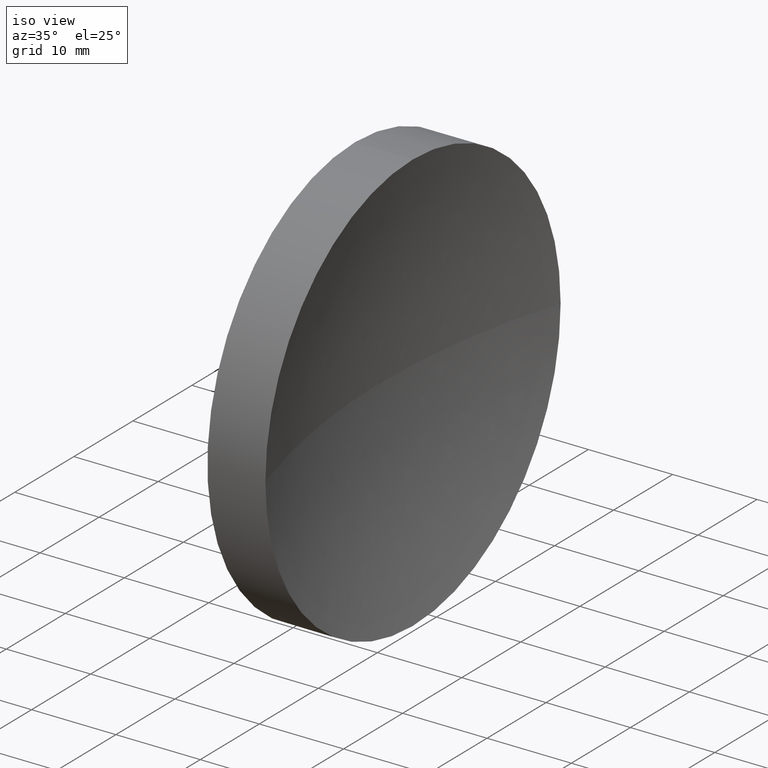
[diagram: clean part render]
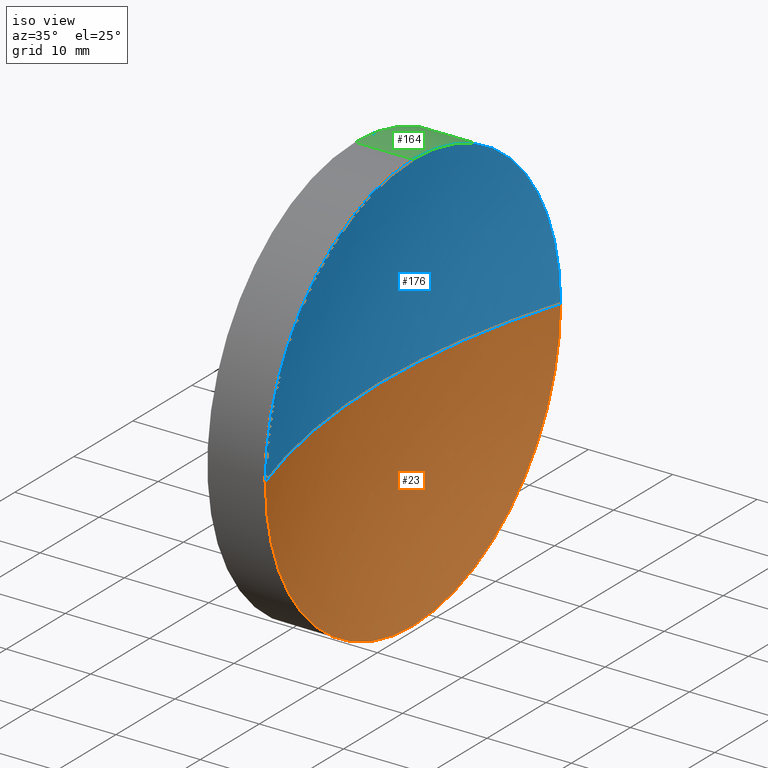
[diagram: same view with three faces highlighted in distinct colors, each labeled with its STEP entity id]
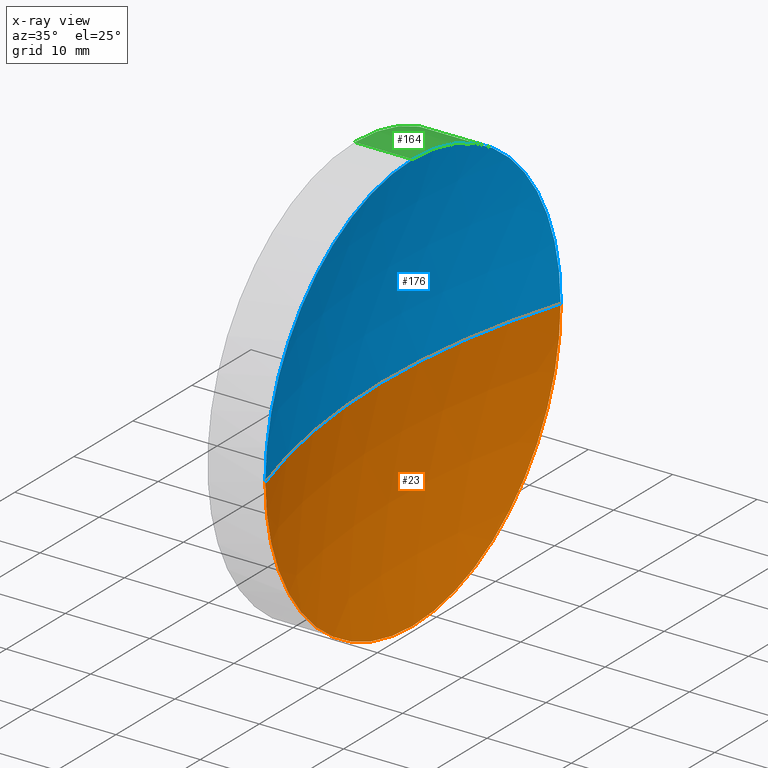
[diagram: x-ray of the same camera — body ghosted, the three highlighted faces saturated]
A machine part, iso view with three faces highlighted in distinct colors.
The next image is the same camera in x-ray (body ghosted, the three faces saturated) — at least one of them is partly hidden behind the body in this view.
Their STEP definitions:

[orange] entity #23 — the highlighted spherical surface has radius 82.62 mm.
#4 = EDGE_CURVE ( 'NONE', #29, #13, #57, .T. ) ;
#6 = DIRECTION ( 'NONE',  ( 0.0000000000000000000, 1.000000000000000000, 1.224646799147353000E-016 ) ) ;
#7 = DIRECTION ( 'NONE',  ( -1.000000000000000000, -0.0000000000000000000, -0.0000000000000000000 ) ) ;
#13 = VERTEX_POINT ( 'NONE', #123 ) ;
#18 = CARTESIAN_POINT ( 'NONE',  ( 120.6125997378311500, 40.15563045701520700, -3.061616997868379500E-015 ) ) ;
#19 = CARTESIAN_POINT ( 'NONE',  ( 199.3594371346434900, 65.15563045701517800, 0.0000000000000000000 ) ) ;
#22 = CARTESIAN_POINT ( 'NONE',  ( 120.6125997378311500, 90.15563045701516400, 0.0000000000000000000 ) ) ;
#23 = ADVANCED_FACE ( 'NONE', ( #129 ), #59, .F. ) ;
#28 = EDGE_CURVE ( 'NONE', #175, #13, #101, .T. ) ;
#29 = VERTEX_POINT ( 'NONE', #18 ) ;
#32 = AXIS2_PLACEMENT_3D ( 'NONE', #125, #33, #6 ) ;
#33 = DIRECTION ( 'NONE',  ( 0.0000000000000000000, 1.224646799147353200E-016, -1.000000000000000000 ) ) ;
#40 = CARTESIAN_POINT ( 'NONE',  ( 120.6125997378311600, 65.15563045701519200, 0.0000000000000000000 ) ) ;
#42 = ORIENTED_EDGE ( 'NONE', *, *, #172, .F. ) ;
#46 = DIRECTION ( 'NONE',  ( 0.0000000000000000000, 0.0000000000000000000, 1.000000000000000000 ) ) ;
#54 = AXIS2_PLACEMENT_3D ( 'NONE', #19, #46, #108 ) ;
#57 = CIRCLE ( 'NONE', #32, 82.62000000000001900 ) ;
#59 = SPHERICAL_SURFACE ( 'NONE', #92, 82.62000000000000500 ) ;
#60 = EDGE_CURVE ( 'NONE', #175, #88, #95, .T. ) ;
#63 = AXIS2_PLACEMENT_3D ( 'NONE', #40, #182, #87 ) ;
#80 = CARTESIAN_POINT ( 'NONE',  ( 120.6125997378311600, 65.15563045701519200, -24.99999999999998200 ) ) ;
#83 = ORIENTED_EDGE ( 'NONE', *, *, #28, .T. ) ;
#85 = CARTESIAN_POINT ( 'NONE',  ( 120.6125997378311600, 65.15563045701519200, 0.0000000000000000000 ) ) ;
#87 = DIRECTION ( 'NONE',  ( 0.0000000000000000000, 0.0000000000000000000, 1.000000000000000000 ) ) ;
#88 = VERTEX_POINT ( 'NONE', #80 ) ;
#92 = AXIS2_PLACEMENT_3D ( 'NONE', #153, #179, #139 ) ;
#95 = CIRCLE ( 'NONE', #63, 24.99999999999998200 ) ;
#101 = CIRCLE ( 'NONE', #54, 82.61999999999997600 ) ;
#108 = DIRECTION ( 'NONE',  ( 1.000000000000000000, 0.0000000000000000000, 0.0000000000000000000 ) ) ;
#116 = ORIENTED_EDGE ( 'NONE', *, *, #60, .F. ) ;
#118 = AXIS2_PLACEMENT_3D ( 'NONE', #85, #7, #180 ) ;
#122 = ORIENTED_EDGE ( 'NONE', *, *, #4, .F. ) ;
#123 = CARTESIAN_POINT ( 'NONE',  ( 116.7394371346435000, 65.15563045701517800, 0.0000000000000000000 ) ) ;
#125 = CARTESIAN_POINT ( 'NONE',  ( 199.3594371346434900, 65.15563045701517800, 0.0000000000000000000 ) ) ;
#129 = FACE_OUTER_BOUND ( 'NONE', #167, .T. ) ;
#139 = DIRECTION ( 'NONE',  ( 0.0000000000000000000, 1.000000000000000000, 0.0000000000000000000 ) ) ;
#149 = CIRCLE ( 'NONE', #118, 24.99999999999998200 ) ;
#153 = CARTESIAN_POINT ( 'NONE',  ( 199.3594371346434900, 65.15563045701517800, 0.0000000000000000000 ) ) ;
#167 = EDGE_LOOP ( 'NONE', ( #122, #42, #116, #83 ) ) ;
#172 = EDGE_CURVE ( 'NONE', #88, #29, #149, .T. ) ;
#175 = VERTEX_POINT ( 'NONE', #22 ) ;
#179 = DIRECTION ( 'NONE',  ( 0.0000000000000000000, 0.0000000000000000000, -1.000000000000000000 ) ) ;
#180 = DIRECTION ( 'NONE',  ( 0.0000000000000000000, 0.0000000000000000000, 1.000000000000000000 ) ) ;
#182 = DIRECTION ( 'NONE',  ( -1.000000000000000000, -0.0000000000000000000, -0.0000000000000000000 ) ) ;

[blue] entity #176 — the highlighted spherical surface has radius 82.62 mm.
#4 = EDGE_CURVE ( 'NONE', #29, #13, #57, .T. ) ;
#5 = DIRECTION ( 'NONE',  ( -1.000000000000000000, -0.0000000000000000000, -0.0000000000000000000 ) ) ;
#6 = DIRECTION ( 'NONE',  ( 0.0000000000000000000, 1.000000000000000000, 1.224646799147353000E-016 ) ) ;
#13 = VERTEX_POINT ( 'NONE', #123 ) ;
#18 = CARTESIAN_POINT ( 'NONE',  ( 120.6125997378311500, 40.15563045701520700, -3.061616997868379500E-015 ) ) ;
#19 = CARTESIAN_POINT ( 'NONE',  ( 199.3594371346434900, 65.15563045701517800, 0.0000000000000000000 ) ) ;
#20 = VERTEX_POINT ( 'NONE', #65 ) ;
#21 = EDGE_CURVE ( 'NONE', #20, #175, #148, .T. ) ;
#22 = CARTESIAN_POINT ( 'NONE',  ( 120.6125997378311500, 90.15563045701516400, 0.0000000000000000000 ) ) ;
#24 = DIRECTION ( 'NONE',  ( -1.000000000000000000, -0.0000000000000000000, -0.0000000000000000000 ) ) ;
#26 = ORIENTED_EDGE ( 'NONE', *, *, #21, .F. ) ;
#28 = EDGE_CURVE ( 'NONE', #175, #13, #101, .T. ) ;
#29 = VERTEX_POINT ( 'NONE', #18 ) ;
#32 = AXIS2_PLACEMENT_3D ( 'NONE', #125, #33, #6 ) ;
#33 = DIRECTION ( 'NONE',  ( 0.0000000000000000000, 1.224646799147353200E-016, -1.000000000000000000 ) ) ;
#36 = AXIS2_PLACEMENT_3D ( 'NONE', #86, #146, #49 ) ;
#41 = AXIS2_PLACEMENT_3D ( 'NONE', #113, #24, #127 ) ;
#46 = DIRECTION ( 'NONE',  ( 0.0000000000000000000, 0.0000000000000000000, 1.000000000000000000 ) ) ;
#49 = DIRECTION ( 'NONE',  ( 0.0000000000000000000, 1.000000000000000000, 0.0000000000000000000 ) ) ;
#54 = AXIS2_PLACEMENT_3D ( 'NONE', #19, #46, #108 ) ;
#57 = CIRCLE ( 'NONE', #32, 82.62000000000001900 ) ;
#62 = ORIENTED_EDGE ( 'NONE', *, *, #143, .F. ) ;
#65 = CARTESIAN_POINT ( 'NONE',  ( 120.6125997378311600, 65.15563045701519200, 24.99999999999998200 ) ) ;
#74 = AXIS2_PLACEMENT_3D ( 'NONE', #142, #5, #161 ) ;
#75 = CIRCLE ( 'NONE', #41, 24.99999999999998200 ) ;
#86 = CARTESIAN_POINT ( 'NONE',  ( 199.3594371346434900, 65.15563045701517800, 0.0000000000000000000 ) ) ;
#98 = EDGE_LOOP ( 'NONE', ( #62, #135, #152, #26 ) ) ;
#101 = CIRCLE ( 'NONE', #54, 82.61999999999997600 ) ;
#108 = DIRECTION ( 'NONE',  ( 1.000000000000000000, 0.0000000000000000000, 0.0000000000000000000 ) ) ;
#113 = CARTESIAN_POINT ( 'NONE',  ( 120.6125997378311600, 65.15563045701519200, 0.0000000000000000000 ) ) ;
#120 = FACE_OUTER_BOUND ( 'NONE', #98, .T. ) ;
#123 = CARTESIAN_POINT ( 'NONE',  ( 116.7394371346435000, 65.15563045701517800, 0.0000000000000000000 ) ) ;
#125 = CARTESIAN_POINT ( 'NONE',  ( 199.3594371346434900, 65.15563045701517800, 0.0000000000000000000 ) ) ;
#127 = DIRECTION ( 'NONE',  ( 0.0000000000000000000, 0.0000000000000000000, 1.000000000000000000 ) ) ;
#135 = ORIENTED_EDGE ( 'NONE', *, *, #4, .T. ) ;
#142 = CARTESIAN_POINT ( 'NONE',  ( 120.6125997378311600, 65.15563045701519200, 0.0000000000000000000 ) ) ;
#143 = EDGE_CURVE ( 'NONE', #29, #20, #75, .T. ) ;
#146 = DIRECTION ( 'NONE',  ( 0.0000000000000000000, 0.0000000000000000000, -1.000000000000000000 ) ) ;
#148 = CIRCLE ( 'NONE', #74, 24.99999999999998200 ) ;
#152 = ORIENTED_EDGE ( 'NONE', *, *, #28, .F. ) ;
#161 = DIRECTION ( 'NONE',  ( 0.0000000000000000000, 0.0000000000000000000, 1.000000000000000000 ) ) ;
#175 = VERTEX_POINT ( 'NONE', #22 ) ;
#176 = ADVANCED_FACE ( 'NONE', ( #120 ), #177, .F. ) ;
#177 = SPHERICAL_SURFACE ( 'NONE', #36, 82.62000000000000500 ) ;

[green] entity #164 — the highlighted cylindrical surface (partial cylindrical patch) has radius 25 mm, axis along (-1, -0, -0).
#5 = DIRECTION ( 'NONE',  ( -1.000000000000000000, -0.0000000000000000000, -0.0000000000000000000 ) ) ;
#9 = DIRECTION ( 'NONE',  ( 0.0000000000000000000, 0.0000000000000000000, 1.000000000000000000 ) ) ;
#14 = EDGE_CURVE ( 'NONE', #88, #55, #17, .T. ) ;
#16 = CARTESIAN_POINT ( 'NONE',  ( 113.7394371346435000, 65.15563045701519200, -24.99999999999999300 ) ) ;
#17 = LINE ( 'NONE', #110, #133 ) ;
#20 = VERTEX_POINT ( 'NONE', #65 ) ;
#21 = EDGE_CURVE ( 'NONE', #20, #175, #148, .T. ) ;
#22 = CARTESIAN_POINT ( 'NONE',  ( 120.6125997378311500, 90.15563045701516400, 0.0000000000000000000 ) ) ;
#34 = CIRCLE ( 'NONE', #138, 24.99999999999999300 ) ;
#35 = EDGE_LOOP ( 'NONE', ( #137, #73, #78, #132, #105 ) ) ;
#40 = CARTESIAN_POINT ( 'NONE',  ( 120.6125997378311600, 65.15563045701519200, 0.0000000000000000000 ) ) ;
#44 = VECTOR ( 'NONE', #97, 1000.000000000000000 ) ;
#50 = CARTESIAN_POINT ( 'NONE',  ( 113.7394371346435000, 65.15563045701519200, 24.99999999999999300 ) ) ;
#55 = VERTEX_POINT ( 'NONE', #16 ) ;
#60 = EDGE_CURVE ( 'NONE', #175, #88, #95, .T. ) ;
#63 = AXIS2_PLACEMENT_3D ( 'NONE', #40, #182, #87 ) ;
#65 = CARTESIAN_POINT ( 'NONE',  ( 120.6125997378311600, 65.15563045701519200, 24.99999999999998200 ) ) ;
#73 = ORIENTED_EDGE ( 'NONE', *, *, #14, .T. ) ;
#74 = AXIS2_PLACEMENT_3D ( 'NONE', #142, #5, #161 ) ;
#78 = ORIENTED_EDGE ( 'NONE', *, *, #178, .F. ) ;
#80 = CARTESIAN_POINT ( 'NONE',  ( 120.6125997378311600, 65.15563045701519200, -24.99999999999998200 ) ) ;
#82 = FACE_OUTER_BOUND ( 'NONE', #35, .T. ) ;
#87 = DIRECTION ( 'NONE',  ( 0.0000000000000000000, 0.0000000000000000000, 1.000000000000000000 ) ) ;
#88 = VERTEX_POINT ( 'NONE', #80 ) ;
#95 = CIRCLE ( 'NONE', #63, 24.99999999999998200 ) ;
#97 = DIRECTION ( 'NONE',  ( -1.000000000000000000, -0.0000000000000000000, -0.0000000000000000000 ) ) ;
#99 = DIRECTION ( 'NONE',  ( -1.000000000000000000, -0.0000000000000000000, -0.0000000000000000000 ) ) ;
#105 = ORIENTED_EDGE ( 'NONE', *, *, #21, .T. ) ;
#107 = CYLINDRICAL_SURFACE ( 'NONE', #131, 24.99999999999998600 ) ;
#110 = CARTESIAN_POINT ( 'NONE',  ( 105.6218371238301200, 65.15563045701519200, -24.99999999999998600 ) ) ;
#119 = EDGE_CURVE ( 'NONE', #20, #160, #136, .T. ) ;
#128 = CARTESIAN_POINT ( 'NONE',  ( 113.7394371346435000, 65.15563045701519200, 0.0000000000000000000 ) ) ;
#131 = AXIS2_PLACEMENT_3D ( 'NONE', #147, #99, #181 ) ;
#132 = ORIENTED_EDGE ( 'NONE', *, *, #119, .F. ) ;
#133 = VECTOR ( 'NONE', #151, 1000.000000000000000 ) ;
#136 = LINE ( 'NONE', #184, #44 ) ;
#137 = ORIENTED_EDGE ( 'NONE', *, *, #60, .T. ) ;
#138 = AXIS2_PLACEMENT_3D ( 'NONE', #128, #155, #9 ) ;
#142 = CARTESIAN_POINT ( 'NONE',  ( 120.6125997378311600, 65.15563045701519200, 0.0000000000000000000 ) ) ;
#147 = CARTESIAN_POINT ( 'NONE',  ( 105.6218371238301200, 65.15563045701519200, 0.0000000000000000000 ) ) ;
#148 = CIRCLE ( 'NONE', #74, 24.99999999999998200 ) ;
#151 = DIRECTION ( 'NONE',  ( -1.000000000000000000, -0.0000000000000000000, -0.0000000000000000000 ) ) ;
#155 = DIRECTION ( 'NONE',  ( -1.000000000000000000, -0.0000000000000000000, -0.0000000000000000000 ) ) ;
#160 = VERTEX_POINT ( 'NONE', #50 ) ;
#161 = DIRECTION ( 'NONE',  ( 0.0000000000000000000, 0.0000000000000000000, 1.000000000000000000 ) ) ;
#164 = ADVANCED_FACE ( 'NONE', ( #82 ), #107, .T. ) ;
#175 = VERTEX_POINT ( 'NONE', #22 ) ;
#178 = EDGE_CURVE ( 'NONE', #160, #55, #34, .T. ) ;
#181 = DIRECTION ( 'NONE',  ( 0.0000000000000000000, 0.0000000000000000000, 1.000000000000000000 ) ) ;
#182 = DIRECTION ( 'NONE',  ( -1.000000000000000000, -0.0000000000000000000, -0.0000000000000000000 ) ) ;
#184 = CARTESIAN_POINT ( 'NONE',  ( 105.6218371238301200, 65.15563045701519200, 24.99999999999998600 ) ) ;